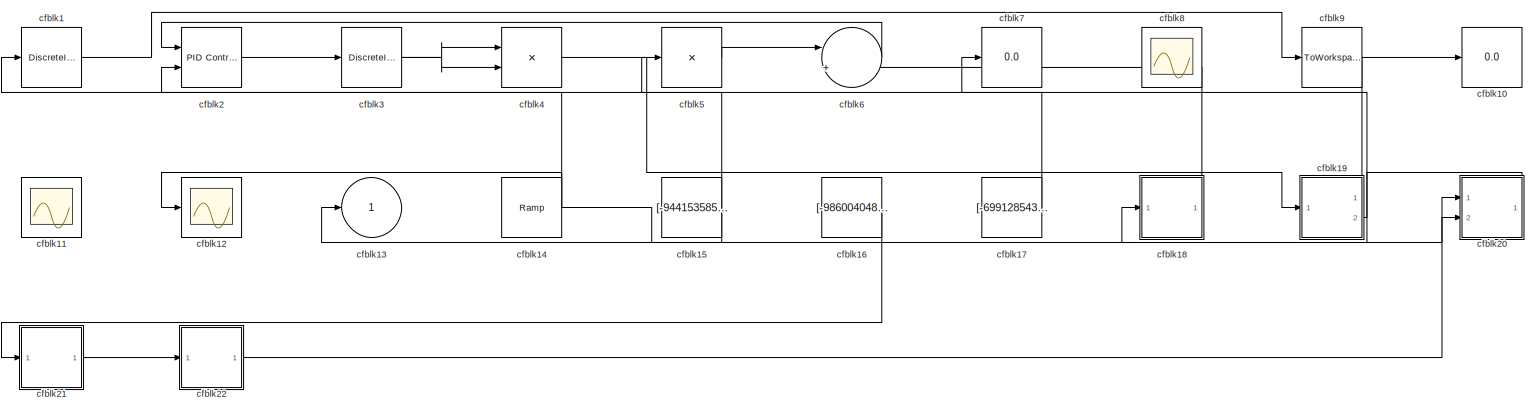
[diagram: root canvas - part 1/1, most of the canvas]
MODEL slx_7d85ccba978b
KIND model
CONFIG AbsTol = auto
CONFIG EnableMultiTasking = off
CONFIG FixedStep = auto
CONFIG MaxStep = auto
CONFIG MinStep = auto
CONFIG RelTol = 1e-3
CONFIG SampleTimeConstraint = Unconstrained
CONFIG SolverName = VariableStepAuto
CONFIG StartTime = 0.0
CONFIG StopTime = 10.0
BLOCK [DiscreteIntegrator] cfblk1
  ICPrevOutput = DiscIntNeverNeededParam
  ICPrevScaledInput = DiscIntNeverNeededParam
  InitialConditionSetting = Auto
  Ports = [1, 1]
BLOCK [Display] cfblk10
  Decimation = 1
  Ports = [1]
BLOCK [Scope] cfblk11
  Floating = on
  NumInputPorts = 1
  Ports = []
BLOCK [Scope] cfblk12
  Floating = off
  NumInputPorts = 1
  Ports = [1]
BLOCK [Outport] cfblk13
BLOCK [Reference] cfblk14  REF=simulink/Sources/Ramp
  Ports = [0, 1]
  SourceBlock = simulink/Sources/Ramp
  SourceProductBaseCode = SL
  SourceType = Ramp
BLOCK [Constant] cfblk15
  SampleTime = 1
  Value = [-944153585.125673]
BLOCK [Constant] cfblk16
  SampleTime = 1
  Value = [-986004048.610838]
BLOCK [Constant] cfblk17
  SampleTime = 1
  Value = [-699128543.103783]
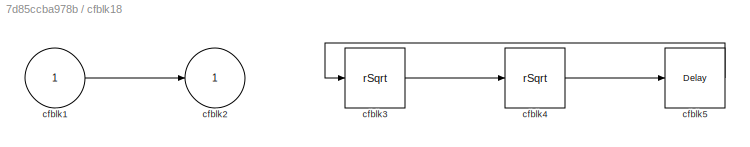
BLOCK [SubSystem] cfblk18
  Ports = [1, 1]
  RequestExecContextInheritance = off
BLOCK [Inport] cfblk18/cfblk1
BLOCK [Outport] cfblk18/cfblk2
BLOCK [Sqrt] cfblk18/cfblk3
  AlgorithmType = Newton-Raphson
  Operator = rSqrt
BLOCK [Sqrt] cfblk18/cfblk4
  AlgorithmType = Newton-Raphson
  Operator = rSqrt
BLOCK [Delay] cfblk18/cfblk5
  InputPortMap = u0
  Ports = [1, 1]
  SampleTime = 1
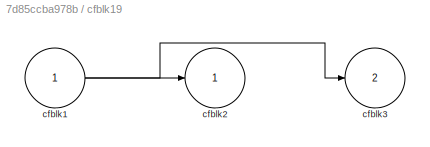
BLOCK [SubSystem] cfblk19
  Ports = [1, 2]
  RequestExecContextInheritance = off
BLOCK [Inport] cfblk19/cfblk1
BLOCK [Outport] cfblk19/cfblk2
BLOCK [Outport] cfblk19/cfblk3
  Port = 2
BLOCK [Reference] cfblk2  REF=slpidlib/PID Controller (2DOF)
  Ports = [2, 1]
  SourceBlock = slpidlib/PID Controller (2DOF)
  SourceProductBaseCode = SL
  SourceType = PID 2dof
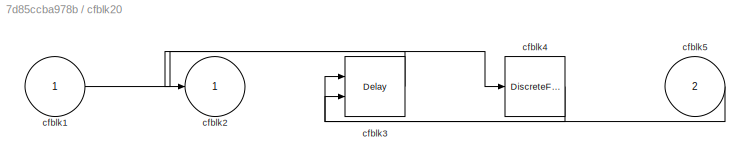
BLOCK [SubSystem] cfblk20
  Ports = [2, 1]
  RequestExecContextInheritance = off
BLOCK [Inport] cfblk20/cfblk1
BLOCK [Outport] cfblk20/cfblk2
BLOCK [Delay] cfblk20/cfblk3
  DelayLengthSource = Input port
  InputPortMap = u0,p1
  Ports = [2, 1]
  SampleTime = 1
BLOCK [DiscreteFir] cfblk20/cfblk4
  InputPortMap = u0
  OutputPortMap = o0
  Ports = [1, 1]
  SampleTime = 1
BLOCK [Inport] cfblk20/cfblk5
  Port = 2
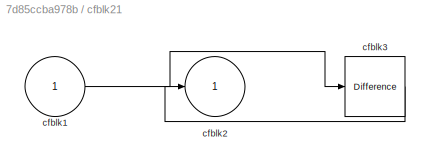
BLOCK [SubSystem] cfblk21
  Ports = [1, 1]
  RequestExecContextInheritance = off
BLOCK [Inport] cfblk21/cfblk1
BLOCK [Outport] cfblk21/cfblk2
BLOCK [Reference] cfblk21/cfblk3  REF=simulink/Discrete/Difference
  Ports = [1, 1]
  SourceBlock = simulink/Discrete/Difference
  SourceProductBaseCode = SL
  SourceType = Difference
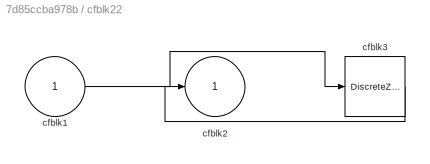
BLOCK [SubSystem] cfblk22
  Ports = [1, 1]
  RequestExecContextInheritance = off
BLOCK [Inport] cfblk22/cfblk1
BLOCK [Outport] cfblk22/cfblk2
BLOCK [DiscreteZeroPole] cfblk22/cfblk3
  Gain = 1
  Poles = [0 0.5]
BLOCK [DiscreteIntegrator] cfblk3
  ICPrevOutput = DiscIntNeverNeededParam
  ICPrevScaledInput = DiscIntNeverNeededParam
  InitialConditionSetting = Auto
  Ports = [1, 1]
BLOCK [Product] cfblk4
  Inputs = **
  Ports = [2, 1]
BLOCK [Product] cfblk5
  Inputs = *
  Ports = [1, 1]
BLOCK [Sum] cfblk6
  Inputs = |++
  Ports = [2, 1]
BLOCK [Display] cfblk7
  Decimation = 1
  Ports = [1]
BLOCK [Scope] cfblk8
  Floating = on
  NumInputPorts = 1
  Ports = []
BLOCK [ToWorkspace] cfblk9
  FixptAsFi = on
  MaxDataPoints = inf
  Ports = [1]
  SampleTime = -1
  SaveFormat = Timeseries
  VariableName = fhavtsv
NET cfblk14:1 -> cfblk12:1, cfblk20:2, cfblk2:2
NET cfblk15:1 -> cfblk13:1, cfblk5:1
LINE cfblk16:1 -> cfblk21:1
LINE cfblk17:1 -> cfblk7:1
LINE cfblk18/cfblk1:1 -> cfblk18/cfblk2:1
LINE cfblk18/cfblk3:1 -> cfblk18/cfblk4:1
LINE cfblk18/cfblk4:1 -> cfblk18/cfblk5:1
LINE cfblk18/cfblk5:1 -> cfblk18/cfblk3:1
LINE cfblk18:1 -> cfblk6:2
NET cfblk19/cfblk1:1 -> cfblk19/cfblk2:1, cfblk19/cfblk3:1
LINE cfblk19:1 -> cfblk10:1
LINE cfblk19:2 -> cfblk1:1
LINE cfblk1:1 -> cfblk9:1
LINE cfblk20/cfblk1:1 -> cfblk20/cfblk4:1
LINE cfblk20/cfblk3:1 -> cfblk20/cfblk2:1
LINE cfblk20/cfblk4:1 -> cfblk20/cfblk3:2
LINE cfblk20/cfblk5:1 -> cfblk20/cfblk3:1
LINE cfblk20:1 -> cfblk18:1
LINE cfblk21/cfblk1:1 -> cfblk21/cfblk3:1
LINE cfblk21/cfblk3:1 -> cfblk21/cfblk2:1
LINE cfblk21:1 -> cfblk22:1
LINE cfblk22/cfblk1:1 -> cfblk22/cfblk3:1
LINE cfblk22/cfblk3:1 -> cfblk22/cfblk2:1
LINE cfblk22:1 -> cfblk20:1
LINE cfblk2:1 -> cfblk3:1
NET cfblk3:1 -> cfblk4:1, cfblk4:2
LINE cfblk4:1 -> cfblk19:1
LINE cfblk5:1 -> cfblk6:1
LINE cfblk6:1 -> cfblk2:1
note: NET lines group one-source signal fan-out (src -> all destinations, sorted); 1:1 wires keep LINE
